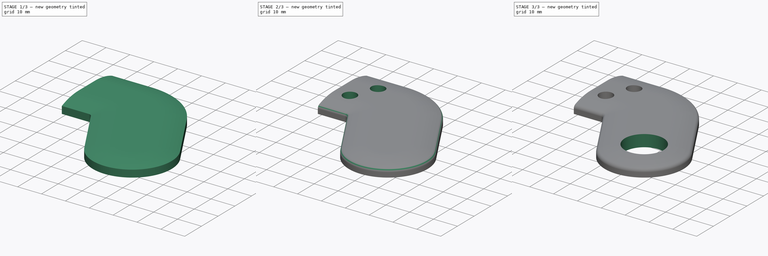
[diagram: build sequence overview — one tinted view per stage of 3, left to right]
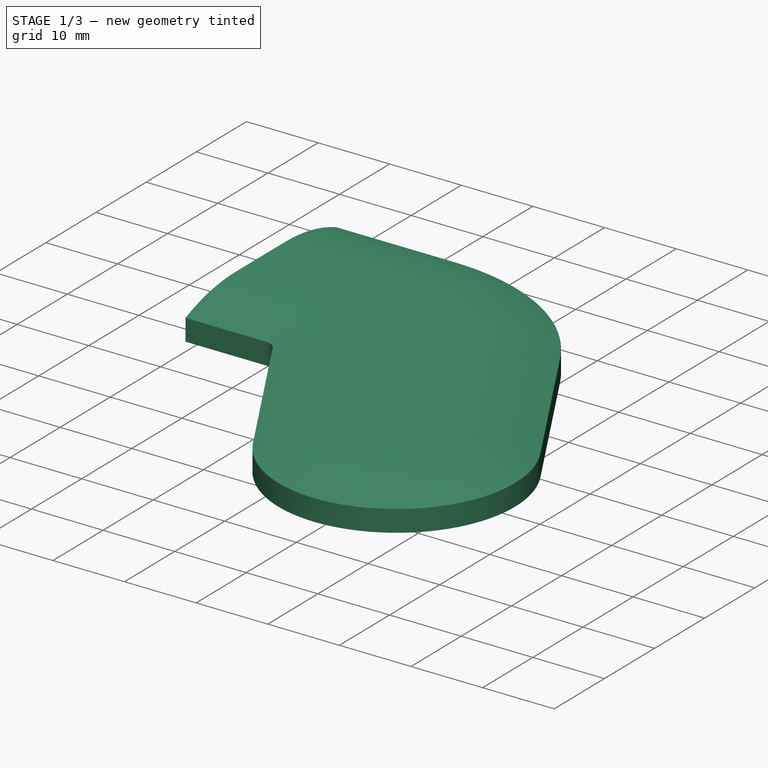
[diagram: stage 1 of 3 — iso view after this stage's code; geometry added in this stage tinted green]
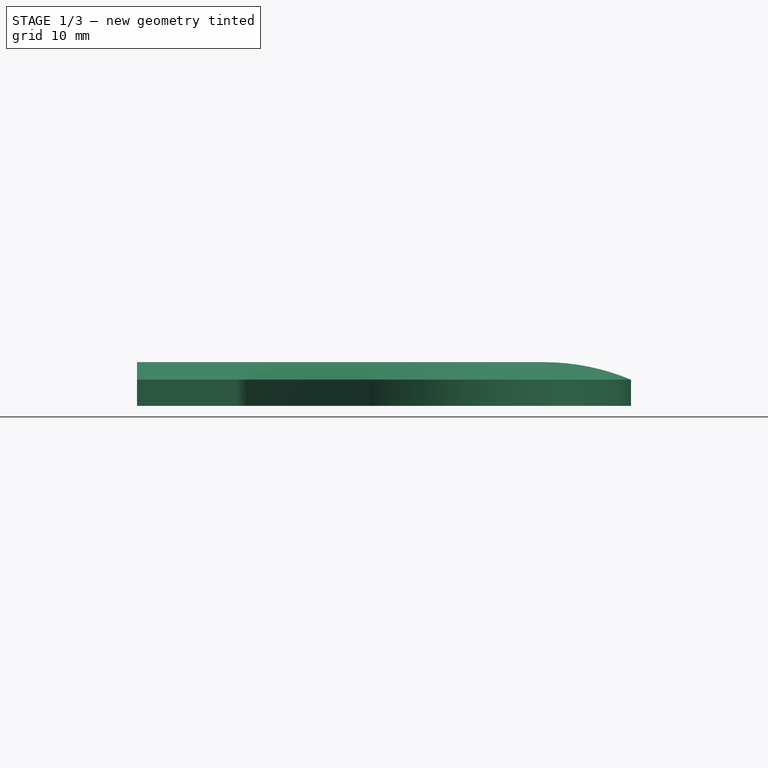
[diagram: stage 1 of 3 — front view after this stage's code; geometry added in this stage tinted green]
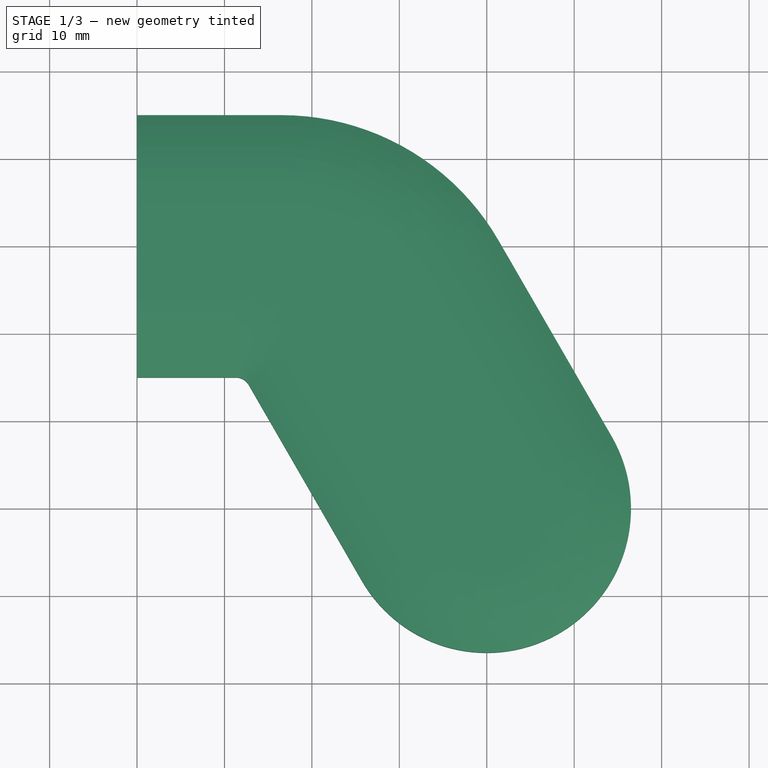
[diagram: stage 1 of 3 — top view after this stage's code; geometry added in this stage tinted green]
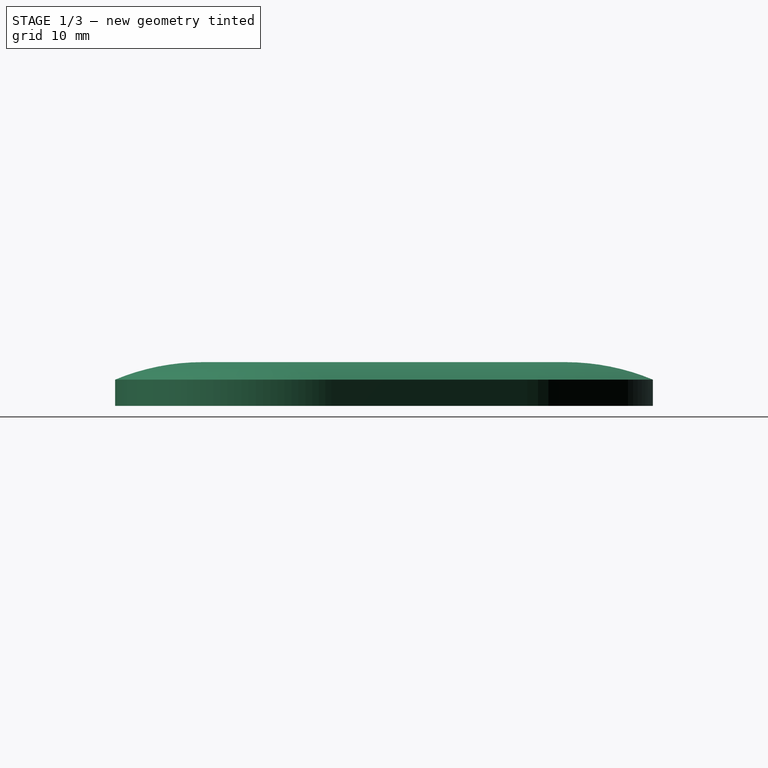
[diagram: stage 1 of 3 — right view after this stage's code; geometry added in this stage tinted green]
FCSTD DOCUMENT  (FreeCAD 0.19R24291 (Git))
Label: Limb_Ball_Bearing_Mount_long_v5
License: CreativeCommons Attribution-NonCommercial
LicenseURL: http://creativecommons.org/licenses/by-nc/4.0/
objects: Sketcher::SketchObject×6, PartDesign::Pocket×4, PartDesign::Pad×1, PartDesign::SubtractivePipe×1, PartDesign::Fillet×1, PartDesign::Body×1
note: 21 computed .brp shape members not serialized (recipe doc carries the construction recipe); baked Part::Feature solids carry a one-line shape summary decoded from their .brp

FEATURE [Sketcher::SketchObject] Sketch
  FullyConstrained = false
  MapMode = 5
  Support = -> [XY_Plane]
  sketch-geometry (9):
    g0: ArcOfCircle CenterX=0 CenterY=0 CenterZ=0 NormalX=0 NormalY=0 NormalZ=1 AngleXU=0 Radius=16.5 StartAngle=3.66519 EndAngle=6.80678
    g1: LineSegment StartX=-14.2894 StartY=-8.25 StartZ=0 EndX=-27.2211 EndY=14.1484 EndZ=0
    g2: LineSegment StartX=1.3577 StartY=30.6484 StartZ=0 EndX=14.2894 EndY=8.25 EndZ=0
    g3: LineSegment StartX=-27.2211 StartY=14.1484 StartZ=0 EndX=1.3577 EndY=30.6484 EndZ=0
    g4: ArcOfCircle CenterX=-28.6962 CenterY=13.2968 CenterZ=0 NormalX=0 NormalY=0 NormalZ=1 AngleXU=0 Radius=1.70319 StartAngle=0.523599 EndAngle=1.5708
    g5: ArcOfCircle CenterX=-23.5 CenterY=16.2968 CenterZ=0 NormalX=0 NormalY=0 NormalZ=1 AngleXU=0 Radius=28.7032 StartAngle=0.523599 EndAngle=1.5708
    g6: LineSegment StartX=-28.6962 StartY=15 StartZ=0 EndX=-40 EndY=15 EndZ=0
    g7: LineSegment StartX=-40 StartY=15 StartZ=0 EndX=-40 EndY=45 EndZ=0
    g8: LineSegment StartX=-40 StartY=45 StartZ=0 EndX=-23.5 EndY=45 EndZ=0
  constraints (22):
    c: Coincident(g0,g-1)
    c: Tangent(g0,g1) = 1.5708
    c: Coincident(g3,g2) = -1.5708
    c: Parallel(g2,g1)
    c: Radius(g0) = 16.5
    c: Tangent(g2,g0) = 1.5708
    c: Coincident(g3,g1)
    c: Perpendicular(g1,g3)
    c: Tangent(g5,g2) = 1.5708
    c: Tangent(g4,g1) = -1.5708
    c: Horizontal(g6)
    c: Coincident(g7,g6)
    c: Vertical(g7)
    c: Coincident(g8,g7)
    c: Horizontal(g8)
    c: Tangent(g6,g4) = -1.5708
    c: DistanceY(g7,g7) = 30
    c: DistanceX(g6,g0) = 40
    c: DistanceX(g8,g8) = 16.5
    c: Tangent(g8,g5) = 1.5708
    c: DistanceY(g0,g4) = 15
    c: Angle(g3) = 0.523599
FEATURE [PartDesign::Pad] Pad  label="Baseplate"
  AllowMultiFace = false
  Direction = (1,1,1)
  Length = 5
  Length2 = 100
  Profile = -> Sketch
  Type = 0
FEATURE [Sketcher::SketchObject] Sketch001
  FullyConstrained = false
  MapMode = 5
  Placement = pos=(-40,0,0) rot=(0.57735,-0.57735,-0.57735;2.0944rad)
  Support = -> [Pad]
  sketch-geometry (4):
    g0: ArcOfCircle CenterX=-25 CenterY=-21 CenterZ=0 NormalX=0 NormalY=0 NormalZ=1 AngleXU=0 Radius=26 StartAngle=1.17601 EndAngle=1.5708
    g1: LineSegment StartX=-25 StartY=5 StartZ=0 EndX=-25 EndY=6 EndZ=0
    g2: LineSegment StartX=-25 StartY=6 StartZ=0 EndX=-15 EndY=6 EndZ=0
    g3: LineSegment StartX=-15 StartY=6 StartZ=0 EndX=-15 EndY=3 EndZ=0
  constraints (13):
    c: Coincident(g1,g0)
    c: Vertical(g1)
    c: Horizontal(g2)
    c: Coincident(g3,g2)
    c: Vertical(g3)
    c: Coincident(g0,g3)
    c: Coincident(g1,g2)
    c: DistanceY(g1,g1) = 1
    c: DistanceY(g3,g3) = 3
    c: DistanceX(g2,g2) = 10
    c: DistanceY(g-1,g0) = 5
    c: Perpendicular(g0,g1)
    c: DistanceX(g0,g-1) = 15
FEATURE [PartDesign::SubtractivePipe] SubtractivePipe  label="Smooth Surfaces"
  AllowMultiFace = false
  AuxilleryCurvelinear = true
  AuxillerySpineTangent = false
  BaseFeature = -> Pad
  Binormal = (0,0,0)
  Mode = 0
  Profile = -> Sketch001
  Spine = -> Pad [Edge19,Edge22,Edge24,Edge4,Edge7,Edge10,Edge13]
  SpineTangent = false
  Transformation = 0
  Transition = 0
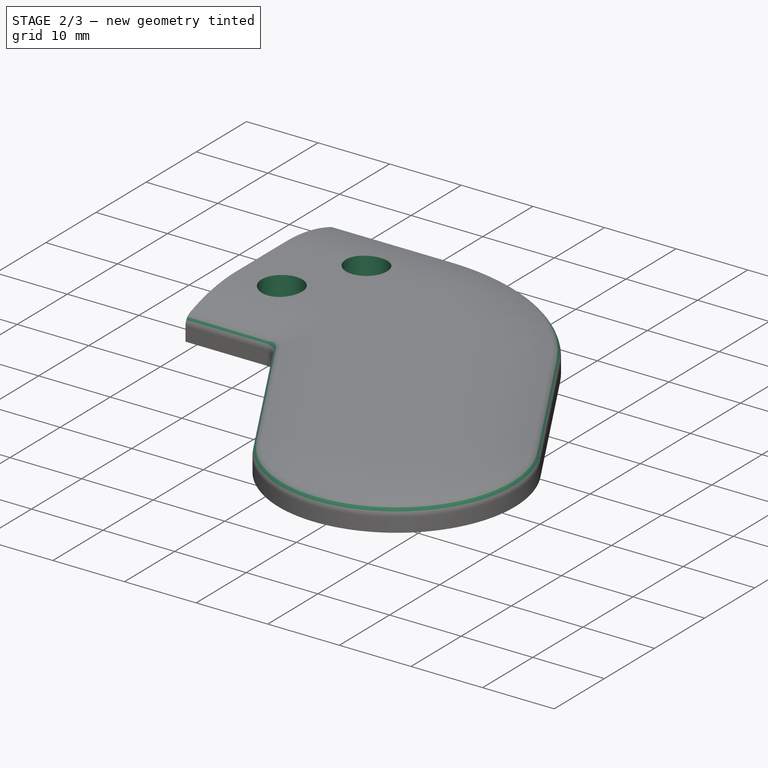
[diagram: stage 2 of 3 — iso view after this stage's code; geometry added in this stage tinted green]
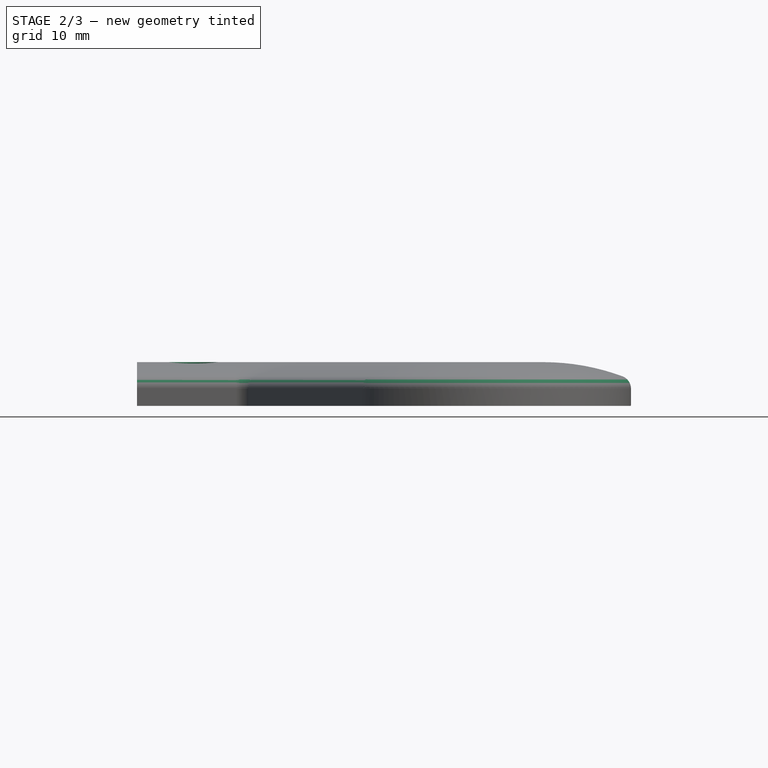
[diagram: stage 2 of 3 — front view after this stage's code; geometry added in this stage tinted green]
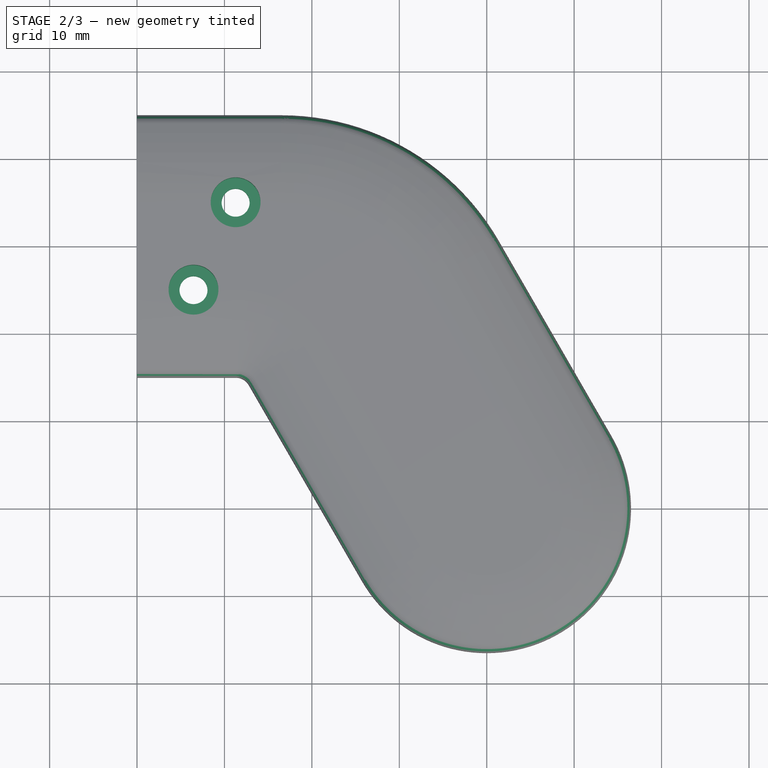
[diagram: stage 2 of 3 — top view after this stage's code; geometry added in this stage tinted green]
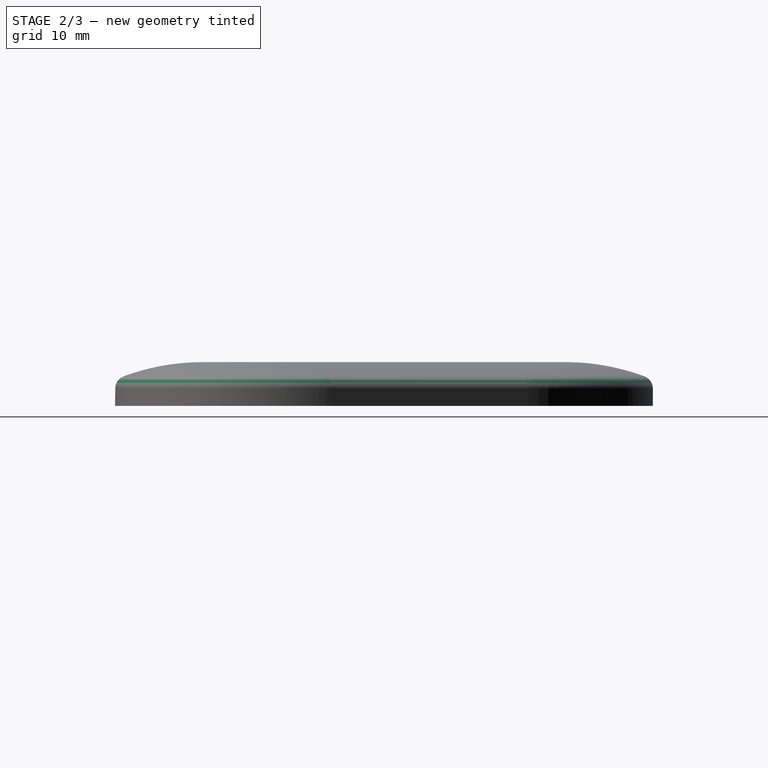
[diagram: stage 2 of 3 — right view after this stage's code; geometry added in this stage tinted green]
FEATURE [PartDesign::Fillet] Fillet  label="Smooth Edges"
  Base = -> SubtractivePipe [Edge21]
  BaseFeature = -> SubtractivePipe
  Radius = 1.5
  SupportTransform = false
FEATURE [Sketcher::SketchObject] Sketch133
  FullyConstrained = false
  MapMode = 5
  Placement = pos=(0,0,5) rot=(0,0,1;0rad)
  Support = -> [SubtractivePipe]
  sketch-geometry (3):
    g0: Circle CenterX=0 CenterY=15 CenterZ=0 NormalX=0 NormalY=0 NormalZ=1 AngleXU=0 Radius=35
    g1: Circle CenterX=-33.541 CenterY=25 CenterZ=0 NormalX=0 NormalY=0 NormalZ=1 AngleXU=0 Radius=2.85
    g2: Circle CenterX=-28.7228 CenterY=35 CenterZ=0 NormalX=0 NormalY=0 NormalZ=1 AngleXU=0 Radius=2.85
  constraints (9):
    c: PointOnObject(g1,g0)
    c: PointOnObject(g2,g0)
    c: Radius(g0) = 35
    c: Equal(g2,g1)
    c: Radius(g1) = 2.85
    c: DistanceY(g1,g2) = 10
    c: DistanceY(g-1,g0) = 15
    c: DistanceY(g0,g1) = 10
    c: DistanceX(g0,g-1) = 0
FEATURE [PartDesign::Pocket] Pocket  label="Screwheads Montage"
  AllowMultiFace = false
  BaseFeature = -> Fillet
  Length = 3
  Length2 = 100
  Profile = -> Sketch133
  Type = 0
FEATURE [Sketcher::SketchObject] Sketch134
  FullyConstrained = false
  MapMode = 5
  Placement = pos=(0,0,2) rot=(0,0,1;0rad)
  Support = -> [Pocket]
  sketch-geometry (3):
    g0: Circle CenterX=0 CenterY=15 CenterZ=0 NormalX=0 NormalY=0 NormalZ=1 AngleXU=0 Radius=35
    g1: Circle CenterX=-33.541 CenterY=25 CenterZ=0 NormalX=0 NormalY=0 NormalZ=1 AngleXU=0 Radius=1.6
    g2: Circle CenterX=-28.7228 CenterY=35 CenterZ=0 NormalX=0 NormalY=0 NormalZ=1 AngleXU=0 Radius=1.6
  constraints (9):
    c: Radius(g0) = 35
    c: PointOnObject(g1,g0)
    c: PointOnObject(g2,g0)
    c: Equal(g2,g1)
    c: Radius(g2) = 1.6
    c: DistanceY(g1,g2) = 10
    c: DistanceY(g-1,g0) = 15
    c: DistanceY(g0,g1) = 10
    c: DistanceX(g0,g-1) = 0
FEATURE [PartDesign::Pocket] Pocket001  label="Screwholes Montage"
  AllowMultiFace = false
  BaseFeature = -> Pocket
  Length = 3
  Length2 = 100
  Profile = -> Sketch134
  Type = 0
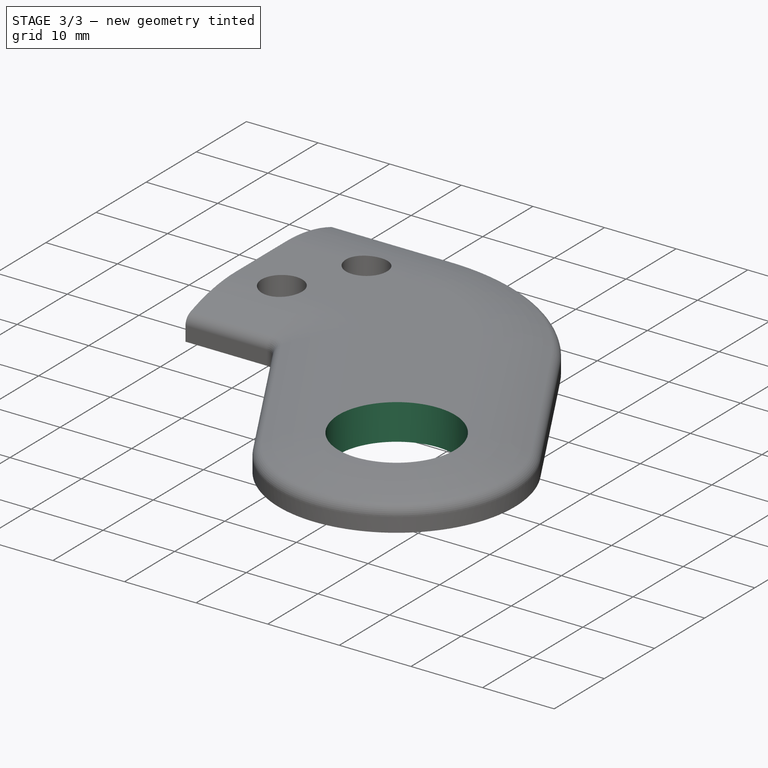
[diagram: stage 3 of 3 — iso view after this stage's code; geometry added in this stage tinted green]
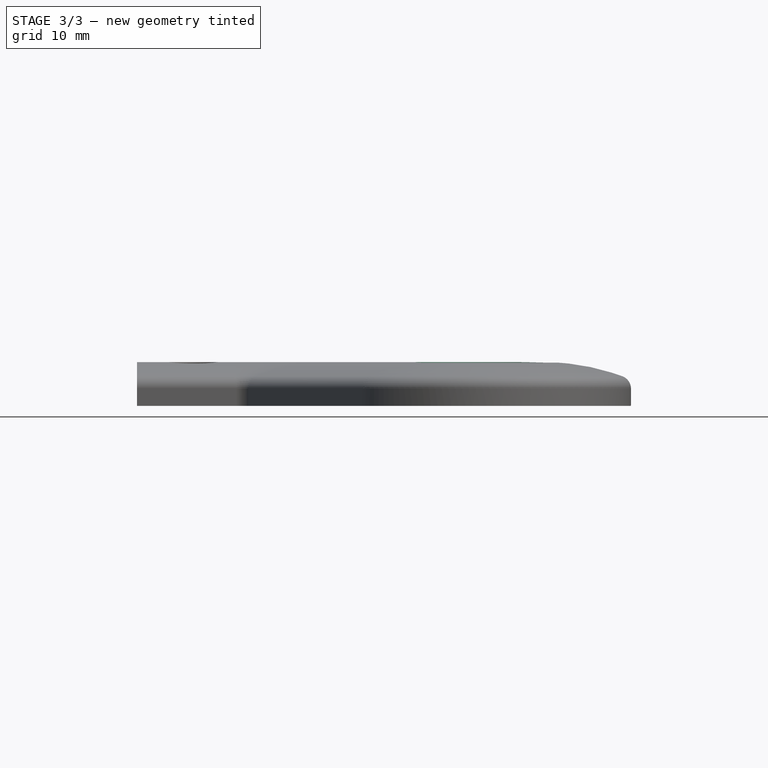
[diagram: stage 3 of 3 — front view after this stage's code; geometry added in this stage tinted green]
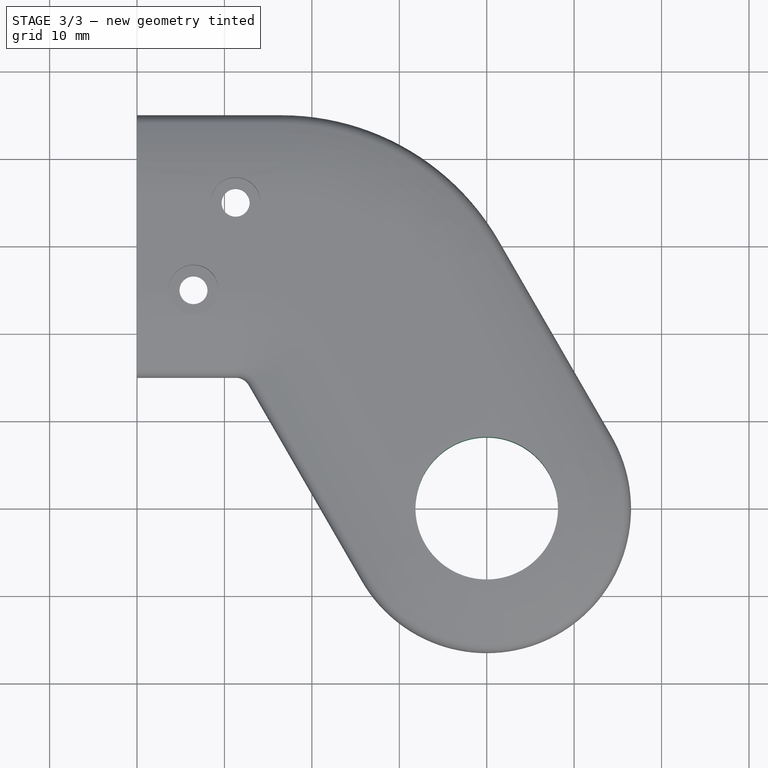
[diagram: stage 3 of 3 — top view after this stage's code; geometry added in this stage tinted green]
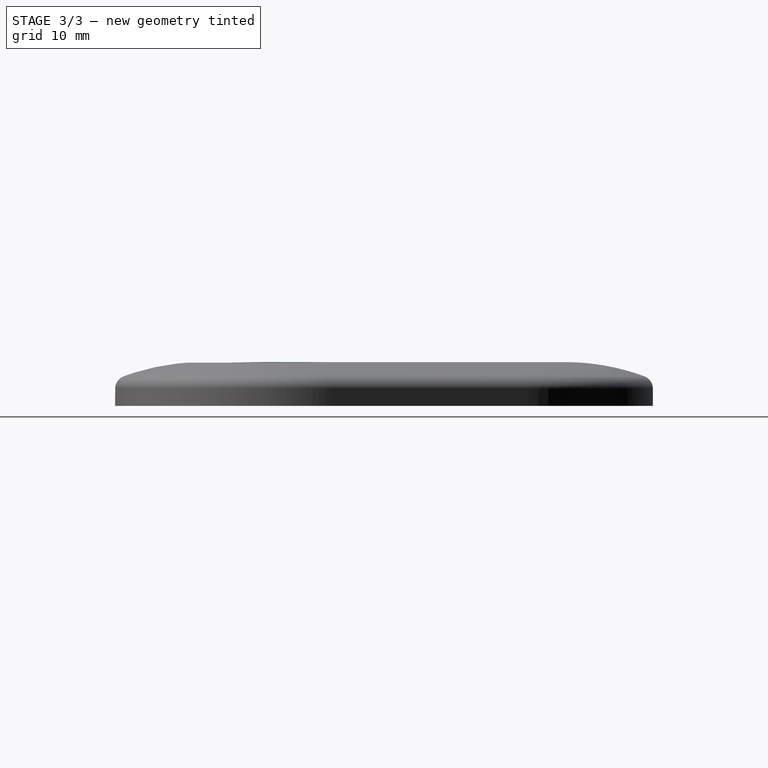
[diagram: stage 3 of 3 — right view after this stage's code; geometry added in this stage tinted green]
FEATURE [Sketcher::SketchObject] Sketch135
  FullyConstrained = false
  MapMode = 5
  Placement = pos=(0,0,5) rot=(0,0,1;0rad)
  Support = -> [Pocket001]
  sketch-geometry (1):
    g0: Circle CenterX=0 CenterY=0 CenterZ=0 NormalX=0 NormalY=0 NormalZ=1 AngleXU=0 Radius=6.15
  constraints (2):
    c: Coincident(g0,g-1)
    c: Radius(g0) = 6.15
FEATURE [PartDesign::Pocket] Pocket002  label="Ball Bearing Flange"
  AllowMultiFace = false
  BaseFeature = -> Pocket001
  Length = 5
  Length2 = 100
  Profile = -> Sketch135
  Type = 0
FEATURE [Sketcher::SketchObject] Sketch136
  FullyConstrained = false
  MapMode = 5
  Placement = pos=(0,0,0) rot=(1,0,0;3.14159rad)
  Support = -> [Pocket002]
  sketch-geometry (1):
    g0: Circle CenterX=0 CenterY=0 CenterZ=0 NormalX=0 NormalY=0 NormalZ=1 AngleXU=0 Radius=8.15
  constraints (2):
    c: Coincident(g0,g-1)
    c: Radius(g0) = 8.15
FEATURE [PartDesign::Pocket] Pocket003  label="Ball Bearing Pocket"
  AllowMultiFace = false
  BaseFeature = -> Pocket002
  Length = 5
  Length2 = 100
  Profile = -> Sketch136
  Type = 0
  expr: Length = Pad.Length
FEATURE [PartDesign::Body] Body  label="Limb_Ball_Bearing_Mount_long_v4"
  Group = -> [Sketch,Pad,Sketch001,SubtractivePipe,Fillet,Sketch133,Pocket,Sketch134,Pocket001,Sketch135,Pocket002,Sketch136,Pocket003]
  Origin = -> Origin
  Tip = -> Pocket003
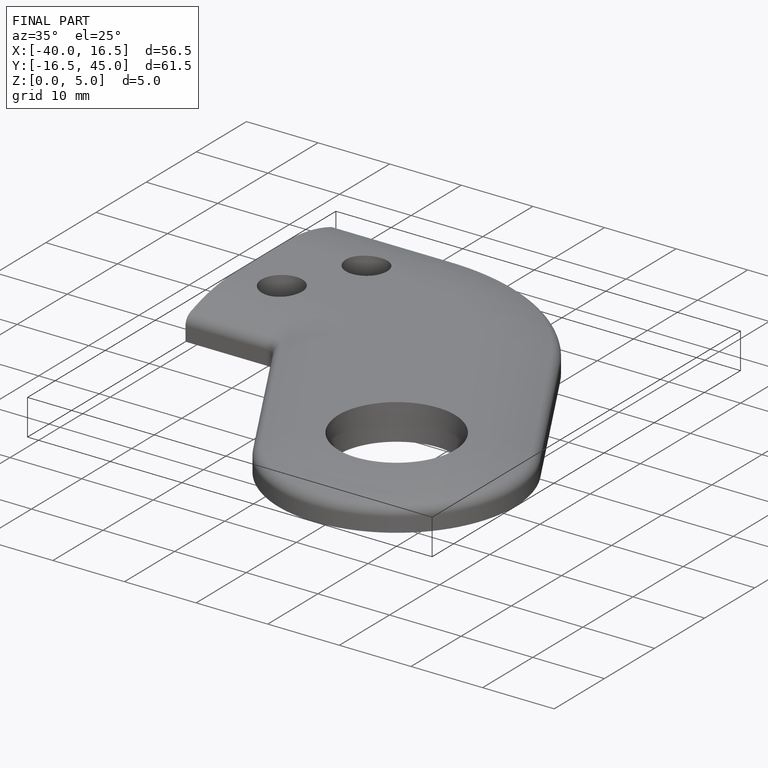
[diagram: finished part — iso view with bounding-box wireframe]
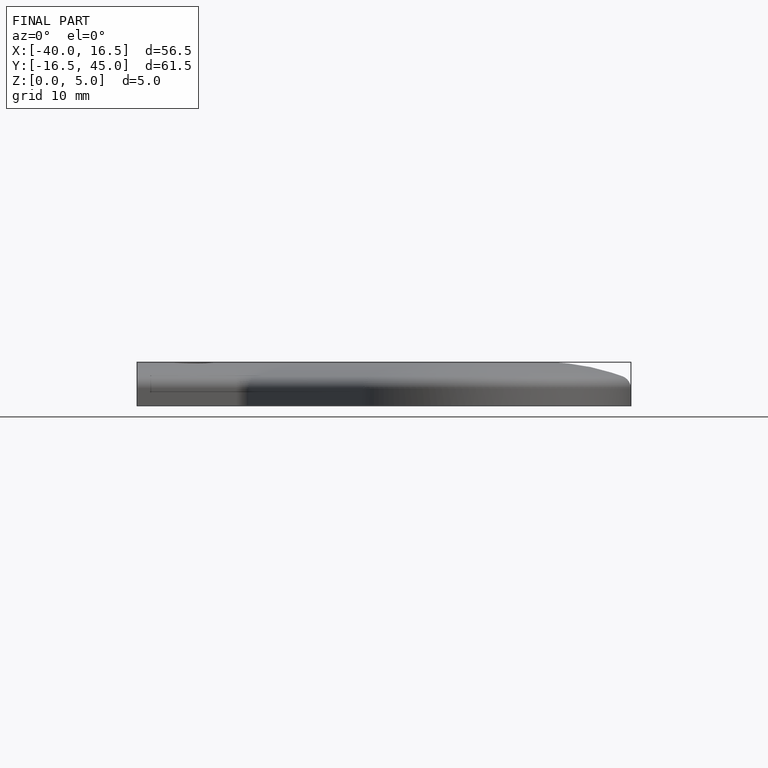
[diagram: finished part — front view with bounding-box wireframe]
